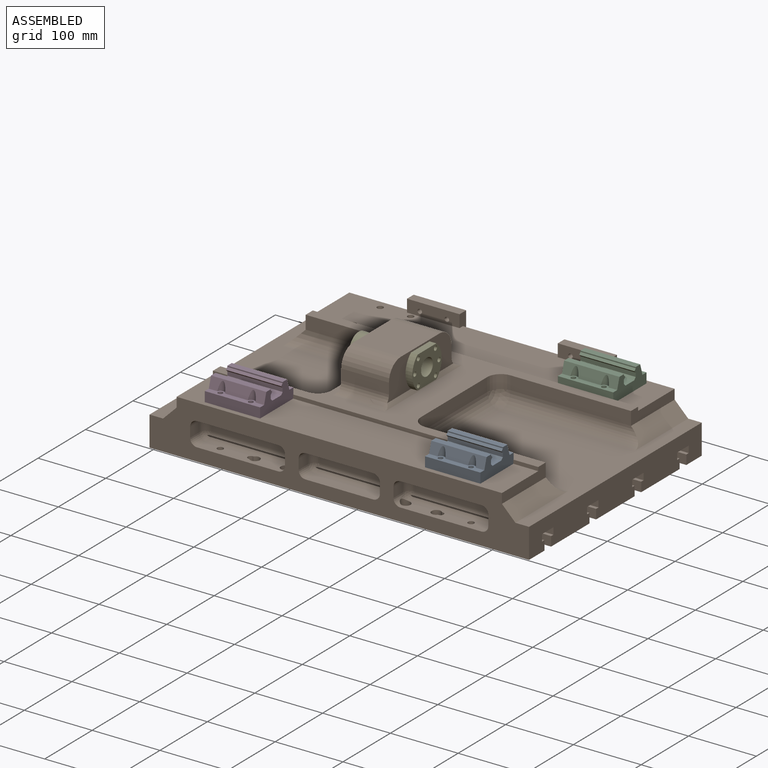
[diagram: assembled view]
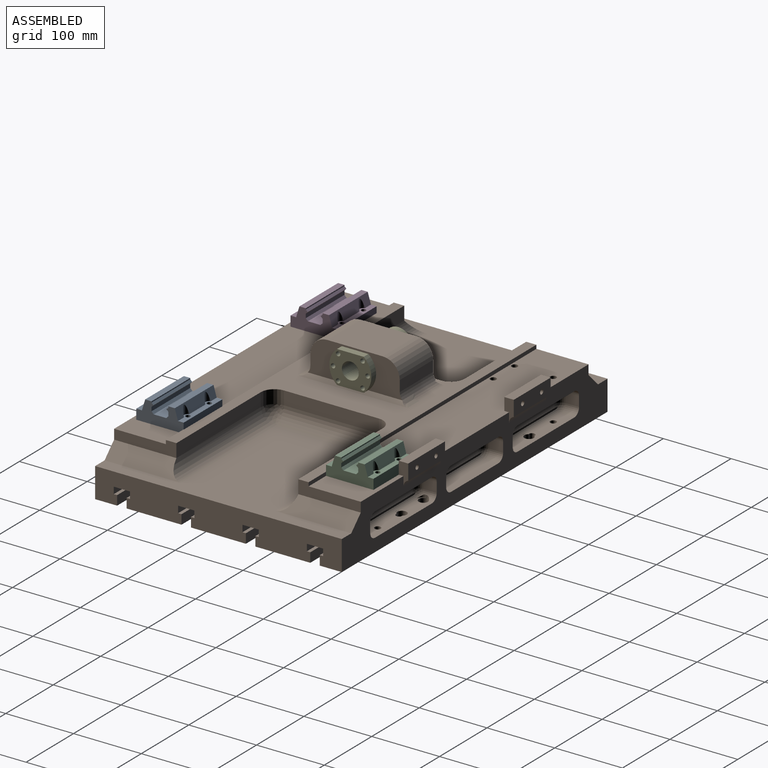
[diagram: assembled view, second angle]
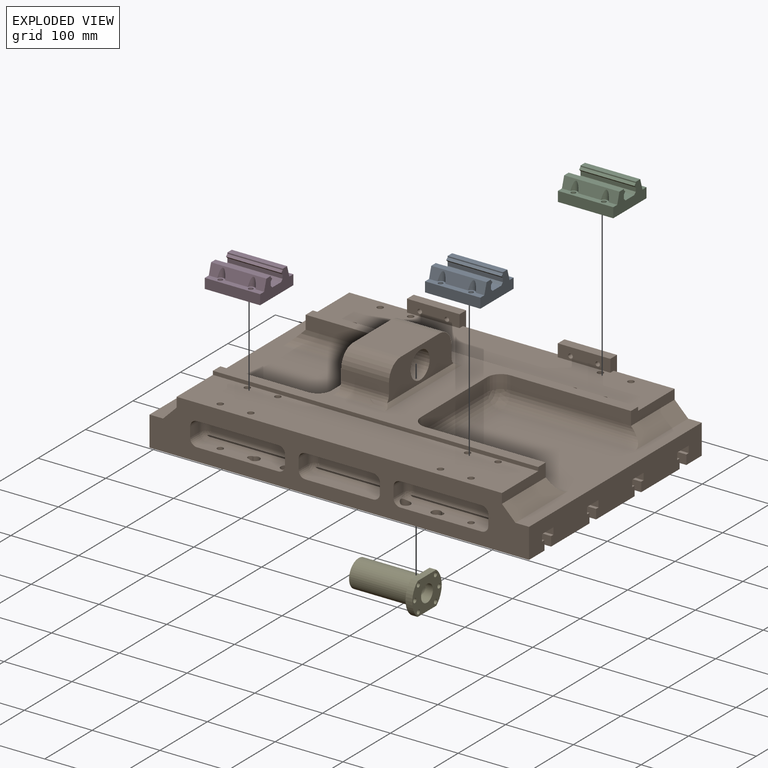
[diagram: exploded view]
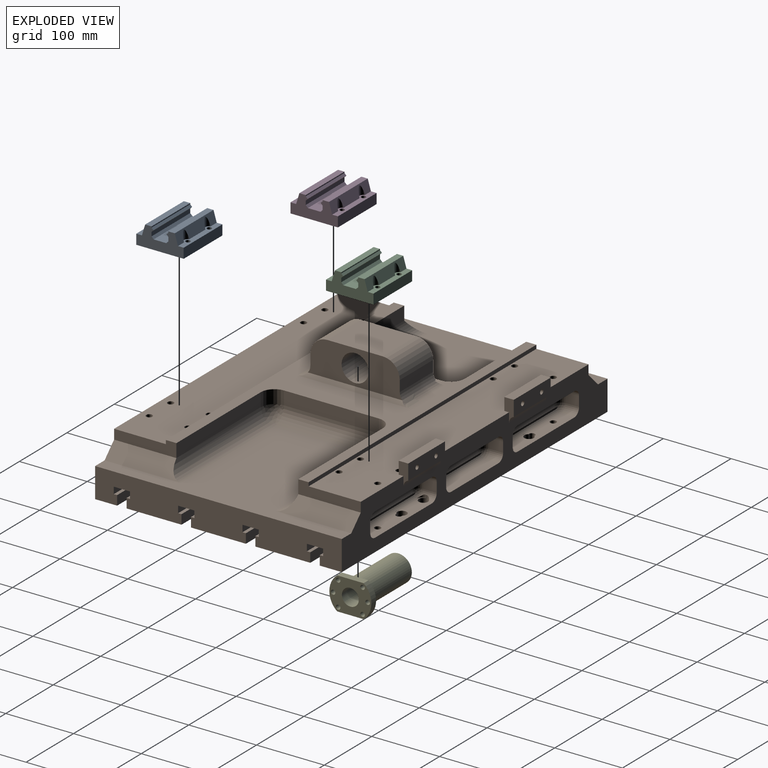
[diagram: exploded view, second angle]
ASSEMBLY  parts=5 mates=4
PART A: 30 faces, bbox 70x81.6x30.5 mm
  f0: cylinder r=3.46mm len=14.75mm, axis (0,0,-1), area 320.5mm2, adj f18,f29
  f1: cylinder r=3.46mm len=14.75mm, axis (0,0,-1), area 320.5mm2, adj f18,f29
  f2: cylinder r=3.46mm len=14.75mm, axis (0,0,-1), area 320.5mm2, adj f17,f29
  f3: cylinder r=3.46mm len=14.75mm, axis (0,0,-1), area 320.5mm2, adj f17,f29
  f4: plane 81.6x2.94mm, normal (-0.7,0,-0.72), area 334.9mm2, adj f10,f19,f20,f27
  f5: plane 81.6x2.94mm, normal (0.7,0,-0.72), area 334.9mm2, adj f6,f19,f20,f25
  f6: plane 81.6x2.94mm, normal (0.7,0,0.72), area 334.9mm2, adj f5,f19,f20,f26
  f7: plane 81.6x3.21mm, normal (0.71,0,-0.71), area 370.9mm2, adj f8,f19,f20,f26
  f8: plane 81.6x18.57mm, normal (0,0,-1), area 1515.4mm2, adj f7,f9,f19,f20
  f9: plane 81.6x3.21mm, normal (-0.71,0,-0.71), area 370.9mm2, adj f8,f19,f20,f28
  f10: plane 81.6x2.94mm, normal (-0.7,0,0.72), area 334.9mm2, adj f4,f19,f20,f28
  f11: cylinder r=6mm len=13.68mm, axis (0,0,-1), area 132.9mm2, adj f17,f22
  f12: cylinder r=6mm len=13.68mm, axis (0,0,-1), area 132.9mm2, adj f18,f21
  f13: cylinder r=6mm len=13.68mm, axis (0,0,-1), area 132.9mm2, adj f18,f21
  f14: cylinder r=6mm len=13.68mm, axis (0,0,-1), area 132.9mm2, adj f17,f22
  f15: plane 81.6x14.75mm, normal (1,0,0), area 1203.6mm2, adj f17,f19,f20,f29
  f16: plane 81.6x14.75mm, normal (-1,0,0), area 1203.6mm2, adj f18,f19,f20,f29
  f17: plane 81.6x12.5mm, normal (0,0,-1), area 678.5mm2, adj f2,f3,f11,f14,f15,f19,f20,f22
  f18: plane 81.6x12.5mm, normal (0,0,-1), area 678.5mm2, adj f0,f1,f12,f13,f16,f19,f20,f21
  f19: plane 70x30.5mm, normal (0,1,0), area 1410.7mm2, adj f4,f5,f6,f7,f8,f9,f10,f15
  f20: plane 70x30.5mm, normal (0,-1,0), area 1410.7mm2, adj f4,f5,f6,f7,f8,f9,f10,f15
  f21: plane 81.6x15.75mm, normal (-0.96,0,-0.29), area 1104.9mm2, adj f12,f13,f18,f19,f20,f24
  f22: plane 81.6x15.75mm, normal (0.96,0,-0.29), area 1103mm2, adj f11,f14,f17,f19,f20,f23
  f23: plane 81.6x9.38mm, normal (0,0,-1), area 765.3mm2, adj f19,f20,f22,f27
  f24: plane 81.6x9.38mm, normal (0,0,-1), area 765.3mm2, adj f19,f20,f21,f25
  f25: plane 81.6x1.63mm, normal (1,0,0), area 133.2mm2, adj f5,f19,f20,f24
  f26: plane 81.6x5.92mm, normal (1,0,0), area 482.9mm2, adj f6,f7,f19,f20
  f27: plane 81.6x1.63mm, normal (-1,0,0), area 133.2mm2, adj f4,f19,f20,f23
  f28: plane 81.6x5.92mm, normal (-1,0,0), area 482.9mm2, adj f9,f10,f19,f20
  f29: plane 81.6x70mm, normal (0,0,1), area 5561.7mm2, adj f0,f1,f2,f3,f15,f16,f19,f20
PART B: 321 faces, bbox 562.3x373.3x142.3 mm
  f0: plane 32.44x14mm, normal (1,0,0), area 307.6mm2, adj f32,f33,f262,f264,f265,f317
  f1: plane 32.44x14mm, normal (-1,0,0), area 307.6mm2, adj f34,f35,f258,f261,f262,f317
  f2: plane 32.44x14mm, normal (1,0,0), area 307.6mm2, adj f34,f35,f258,f261,f262,f317
  f3: plane 480x5.5mm, normal (0,1,0), area 2640mm2, adj f6,f7,f10,f317
  f4: plane 32.44x14mm, normal (-1,0,0), area 307.6mm2, adj f32,f33,f262,f264,f265,f317
  f5: plane 480x5.5mm, normal (0,-1,0), area 2640mm2, adj f6,f8,f9,f316
  f6: plane 480x210.5mm, normal (0,0,1), area 26075mm2, adj f3,f5,f7,f8,f9,f10,f113,f114
  f7: plane 92x19.9mm, normal (-1,0,0), area 1407.3mm2, adj f3,f6,f114,f262,f309,f317
  f8: plane 92x19.9mm, normal (-1,0,0), area 1410mm2, adj f5,f6,f112,f113,f308,f316
  f9: plane 92x19.9mm, normal (1,0,0), area 1410mm2, adj f5,f6,f112,f209,f311,f316
  f10: plane 92x19.9mm, normal (1,0,0), area 1407.3mm2, adj f3,f6,f211,f262,f310,f317
  f11: cylinder r=4.5mm len=31mm, axis (0,0,1), area 652.4mm2, adj f38,f277,f304
  f12: cylinder r=7mm len=25mm, axis (0,0,-1), area 860.1mm2, adj f38,f57,f304
  f13: cylinder r=4.5mm len=9mm, axis (0,0,1), area 40mm2, adj f36,f274,f302
  f14: cylinder r=7mm len=19.1mm, axis (0,0,-1), area 657.1mm2, adj f69,f82,f303
  f15: cylinder r=4.5mm len=9mm, axis (0,0,1), area 40mm2, adj f39,f281,f298
  f16: cylinder r=7mm len=19.1mm, axis (0,0,-1), area 657.1mm2, adj f71,f82,f299
  f17: cylinder r=4.5mm len=31mm, axis (0,0,1), area 652.4mm2, adj f41,f280,f294
  f18: cylinder r=7mm len=25mm, axis (0,0,-1), area 860.1mm2, adj f41,f57,f294
  f19: cylinder r=4.5mm len=9mm, axis (0,0,1), area 40mm2, adj f129,f273,f289
  f20: cylinder r=7mm len=19.11mm, axis (0,0,-1), area 657.2mm2, adj f111,f123,f125,f206,f290
  f21: cylinder r=4.5mm len=31mm, axis (0,0,1), area 652.4mm2, adj f185,f270,f288
  f22: cylinder r=7mm len=25mm, axis (0,0,-1), area 860.1mm2, adj f104,f185,f288
  f23: cylinder r=4.5mm len=31mm, axis (0,0,1), area 652.4mm2, adj f187,f272,f286
  f24: cylinder r=7mm len=25mm, axis (0,0,-1), area 860.1mm2, adj f104,f187,f286
  f25: cylinder r=4.5mm len=9mm, axis (0,0,1), area 40mm2, adj f133,f271,f284
  f26: cylinder r=7mm len=19.11mm, axis (0,0,-1), area 657.2mm2, adj f111,f124,f137,f203,f285
  f27: cylinder r=4.5mm len=31mm, axis (0,0,1), area 876.5mm2, adj f40,f279
  f28: cylinder r=4.5mm len=9mm, axis (0,0,1), area 53.7mm2, adj f39,f278
  f29: cylinder r=4.5mm len=31mm, axis (0,0,1), area 876.5mm2, adj f37,f276
  f30: cylinder r=4.5mm len=9mm, axis (0,0,1), area 53.7mm2, adj f36,f275
  f31: cylinder r=3.32mm len=14mm, axis (0,-1,0), area 292.4mm2, adj f32,f265
  f32: plane 77.5x18.5mm, normal (0,-1,0), area 1364.3mm2, adj f0,f4,f31,f263,f264,f317
  f33: cylinder r=10mm len=77.5mm, axis (1,0,0), area 981.2mm2, adj f0,f4,f262,f265
  f34: plane 77.5x18.5mm, normal (0,-1,0), area 1364.3mm2, adj f1,f2,f259,f260,f261,f317
  f35: cylinder r=10mm len=77.5mm, axis (1,0,0), area 981.2mm2, adj f1,f2,f258,f262
  f36: plane 128.25x22.5mm, normal (0,0,-1), area 2278.7mm2, adj f13,f30,f42,f43,f44,f45,f46,f256
  f37: plane 14x14mm, normal (0,0,-1), area 90.3mm2, adj f29,f47
  f38: plane 14x12.43mm, normal (0,0,-1), area 68.7mm2, adj f11,f12,f304
  f39: plane 128.25x22.5mm, normal (0,0,-1), area 2278.7mm2, adj f15,f28,f48,f49,f50,f51,f253,f254
  f40: plane 14x14mm, normal (0,0,-1), area 90.3mm2, adj f27,f52
  f41: plane 14x12.43mm, normal (0,0,-1), area 68.7mm2, adj f17,f18,f294
  f42: cylinder r=10mm len=120mm, axis (1,0,0), area 1862.6mm2, adj f36,f44,f45,f46,f53,f54,f55,f256
  f43: cylinder r=10mm len=20mm, axis (0,-1,0), area 314.2mm2, adj f36,f53,f56,f262
  f44: cylinder r=7mm len=14mm, axis (0,0,1), area 50.7mm2, adj f36,f42,f55,f256,f257
  f45: cylinder r=5.5mm len=2.39mm, axis (0,0,-1), area 0.1mm2, adj f36,f42,f46
  f46: cylinder r=7mm len=9.25mm, axis (0,0,1), area 2mm2, adj f36,f42,f45
  f47: cylinder r=7mm len=25mm, axis (0,0,-1), area 1099.6mm2, adj f37,f57
  f48: cylinder r=5.5mm len=2.39mm, axis (0,0,-1), area 0.1mm2, adj f39,f49,f254
  f49: cylinder r=7mm len=14mm, axis (0,0,1), area 50.8mm2, adj f39,f48,f50,f252,f254
  f50: cylinder r=10mm len=20mm, axis (0,-1,0), area 221.2mm2, adj f39,f49,f58,f252,f262
  f51: cylinder r=7mm len=9.25mm, axis (0,0,1), area 1.9mm2, adj f39,f254,f255
  f52: cylinder r=7mm len=25mm, axis (0,0,-1), area 1099.6mm2, adj f40,f57
  f53: sphere r=10mm, area 157.1mm2, adj f42,f43,f59
  f54: plane 120x15mm, normal (0,1,0), area 1800mm2, adj f42,f59,f60,f61
  f55: sphere r=10mm, area 145.8mm2, adj f42,f44,f61,f257
  f56: plane 20x15mm, normal (1,0,0), area 300mm2, adj f43,f59,f62,f262
  f57: plane 560x81mm, normal (0,0,-1), area 44557.7mm2, adj f12,f18,f47,f52,f63,f251,f294,f295
  f58: plane 20x15mm, normal (1,0,0), area 300mm2, adj f50,f64,f250,f262
  f59: cylinder r=10mm len=15mm, axis (0,0,-1), area 235.6mm2, adj f53,f54,f56,f65
  f60: cylinder r=10mm len=120mm, axis (-1,0,0), area 642.2mm2, adj f54,f65,f66,f67
  f61: cylinder r=10mm len=15mm, axis (0,0,1), area 235.6mm2, adj f54,f55,f66,f68
  f62: cylinder r=10mm len=20mm, axis (0,-1,0), area 314.2mm2, adj f56,f65,f69,f262
  f63: plane 560x14mm, normal (0,1,0), area 7840mm2, adj f57,f249,f306,f307
  f64: cylinder r=10mm len=20mm, axis (0,-1,0), area 201.9mm2, adj f58,f70,f71,f72,f248,f262
  f65: sphere r=10mm, area 153.1mm2, adj f59,f60,f62,f67,f73,f247
  f66: sphere r=10mm, area 139.5mm2, adj f60,f61,f67,f73,f74,f75,f247
  f67: plane 560.49x24.49mm, normal (0,0,-1), area 13046.6mm2, adj f60,f65,f66,f73,f76,f77,f78,f84
  f68: plane 20x15mm, normal (-1,0,0), area 300mm2, adj f61,f75,f257,f262
  f69: plane 128.25x22.5mm, normal (0,0,1), area 2136.2mm2, adj f14,f62,f74,f75,f79,f243,f244,f245
  f70: cylinder r=7mm len=10.89mm, axis (0,0,1), area 30.7mm2, adj f64,f71,f72,f241,f242,f248
  f71: plane 128.25x22.5mm, normal (0,0,1), area 2136.2mm2, adj f16,f64,f70,f72,f80,f81,f240,f241
  f72: cylinder r=7mm len=23.45mm, axis (0,0,-1), area 868.7mm2, adj f64,f70,f71,f82
  f73: plane 561.01x11.01mm, normal (0,-1,0), area 5059mm2, adj f65,f66,f67,f76,f83,f84,f237,f239
  f74: cylinder r=7mm len=10.89mm, axis (0,0,1), area 30.7mm2, adj f66,f69,f75,f243,f244,f247
  f75: cylinder r=10mm len=20mm, axis (0,-1,0), area 201.8mm2, adj f66,f68,f69,f74,f243,f262
  f76: sphere r=10mm, area 152.1mm2, adj f67,f73,f83,f85,f86,f246
  f77: cylinder r=10mm len=120mm, axis (1,0,0), area 642.2mm2, adj f67,f237,f238,f248
  f78: plane 560x10mm, normal (0,1,0), area 5600mm2, adj f67,f249,f306,f307
  f79: cylinder r=7mm len=9.25mm, axis (0,0,1), area 1.9mm2, adj f69,f245,f247
  f80: cylinder r=7mm len=9.25mm, axis (0,0,1), area 2mm2, adj f71,f240,f241
  f81: cylinder r=10mm len=20mm, axis (0,-1,0), area 314.2mm2, adj f71,f87,f237,f262
  f82: plane 560x32.5mm, normal (0,0,-1), area 17397.7mm2, adj f14,f16,f72,f236,f243,f262,f296,f299
  f83: cylinder r=10mm len=100mm, axis (-1,0,0), area 848.1mm2, adj f73,f76,f84,f88
  f84: sphere r=10mm, area 148.8mm2, adj f67,f73,f83,f231,f233,f246
  f85: cylinder r=10mm len=15mm, axis (0,0,-1), area 235.6mm2, adj f76,f89,f90,f235
  f86: cylinder r=10mm len=20mm, axis (0,-1,0), area 314.2mm2, adj f76,f88,f90,f262
  f87: plane 20x15mm, normal (-1,0,0), area 300mm2, adj f81,f234,f253,f262
  f88: plane 100x20mm, normal (0,0,1), area 2000mm2, adj f83,f86,f233,f262
  f89: sphere r=10mm, area 166.6mm2, adj f85,f91,f92
  f90: plane 20x15mm, normal (1,0,0), area 300mm2, adj f85,f86,f91,f262
  f91: cylinder r=10mm len=20mm, axis (0,-1,0), area 314.2mm2, adj f89,f90,f232,f262
  f92: cylinder r=10mm len=100mm, axis (1,0,0), area 1570.8mm2, adj f89,f93,f232,f235
  f93: sphere r=10mm, area 166.6mm2, adj f92,f95,f231
  f94: plane 20x15mm, normal (-1,0,0), area 300mm2, adj f95,f231,f233,f262
  f95: cylinder r=10mm len=20mm, axis (0,-1,0), area 314.2mm2, adj f93,f94,f232,f262
  f96: plane 560x14mm, normal (0,1,0), area 7840mm2, adj f97,f118,f306,f307
  f97: plane 560x81mm, normal (0,0,-1), area 45360mm2, adj f96,f98,f306,f307
  f98: plane 560x14mm, normal (0,-1,0), area 7840mm2, adj f97,f99,f306,f307
  f99: plane 560x5mm, normal (0,0,1), area 2800mm2, adj f98,f230,f306,f307
  f100: plane 560x24mm, normal (0,0,-1), area 13440mm2, adj f101,f230,f306,f307
  f101: plane 560x10mm, normal (0,1,0), area 5600mm2, adj f100,f102,f306,f307
  f102: plane 560x5mm, normal (0,0,1), area 2800mm2, adj f101,f103,f306,f307
  f103: plane 560x14mm, normal (0,1,0), area 7840mm2, adj f102,f104,f306,f307
  f104: plane 560x81mm, normal (0,0,-1), area 44557.7mm2, adj f22,f24,f103,f105,f223,f224,f286,f287
  f105: plane 560x14mm, normal (0,-1,0), area 7840mm2, adj f104,f106,f306,f307
  f106: plane 560x5mm, normal (0,0,1), area 2800mm2, adj f105,f229,f306,f307
  f107: plane 561.04x25.04mm, normal (0,0,-1), area 13046.6mm2, adj f108,f119,f120,f121,f155,f165,f219,f220
  f108: plane 561.01x11.01mm, normal (0,1,0), area 5058.9mm2, adj f107,f109,f119,f120,f121,f122,f123,f124
  f109: plane 560x5mm, normal (0,0,1), area 2800mm2, adj f108,f110,f306,f307
  f110: plane 560x14mm, normal (0,1,0), area 7840mm2, adj f109,f111,f306,f307
  f111: plane 560x32.5mm, normal (0,0,-1), area 17397.7mm2, adj f20,f26,f110,f112,f217,f218,f282,f285
  f112: plane 560x78.5mm, normal (0,-1,0), area 27865.5mm2, adj f8,f9,f111,f125,f126,f127,f128,f129
  f113: plane 130x19.9mm, normal (0,1,0), area 2587mm2, adj f6,f8,f151,f228
  f114: plane 130x19.9mm, normal (0,-1,0), area 2587mm2, adj f6,f7,f210,f226
  f115: plane 560x5mm, normal (0,0,1), area 2800mm2, adj f225,f251,f306,f307
  f116: plane 560x24mm, normal (0,0,-1), area 13440mm2, adj f117,f225,f306,f307
  f117: plane 560x10mm, normal (0,1,0), area 5600mm2, adj f116,f118,f306,f307
  f118: plane 560x5mm, normal (0,0,1), area 2800mm2, adj f96,f117,f306,f307
  f119: sphere r=10mm, area 153mm2, adj f107,f108,f122,f142,f196,f222
  f120: sphere r=10mm, area 151mm2, adj f107,f108,f124,f138,f154,f218,f221
  f121: sphere r=10mm, area 153mm2, adj f107,f108,f123,f126,f157,f220
  f122: cylinder r=10mm len=100mm, axis (1,0,0), area 848.1mm2, adj f108,f119,f141,f155
  f123: cylinder r=10mm len=120mm, axis (1,0,0), area 1013.5mm2, adj f20,f108,f121,f125,f205,f206,f217,f219
  f124: cylinder r=10mm len=120mm, axis (1,0,0), area 1013.5mm2, adj f26,f108,f120,f137,f165,f203,f204,f218
  f125: plane 128.25x20.5mm, normal (0,0,1), area 2101.5mm2, adj f20,f112,f123,f126,f132,f156,f205,f206
  f126: cylinder r=10mm len=20mm, axis (0,1,0), area 314.2mm2, adj f112,f121,f125,f127
  f127: plane 20x15mm, normal (-1,0,0), area 300mm2, adj f112,f126,f128,f157
  f128: cylinder r=10mm len=20mm, axis (0,1,0), area 314.2mm2, adj f112,f127,f129,f158
  f129: plane 128.25x20.5mm, normal (0,0,-1), area 2255.3mm2, adj f19,f112,f128,f130,f159,f200,f201,f202
  f130: cylinder r=10mm len=20mm, axis (0,1,0), area 207.9mm2, adj f112,f129,f131,f199,f201
  f131: plane 20x15mm, normal (1,0,0), area 300mm2, adj f112,f130,f132,f198
  f132: cylinder r=10mm len=20mm, axis (0,1,0), area 204.8mm2, adj f112,f125,f131,f156,f217,f219
  f133: plane 128.25x20.5mm, normal (0,0,-1), area 2255.3mm2, adj f25,f112,f134,f140,f160,f161,f162,f197
  f134: cylinder r=10mm len=20mm, axis (0,1,0), area 314.2mm2, adj f112,f133,f135,f163
  f135: plane 20x15mm, normal (1,0,0), area 300mm2, adj f112,f134,f136,f164
  f136: cylinder r=10mm len=20mm, axis (0,1,0), area 314.2mm2, adj f112,f135,f137,f165
  f137: plane 128.25x20.5mm, normal (0,0,1), area 2101.5mm2, adj f26,f112,f124,f136,f138,f166,f203,f204
  f138: cylinder r=10mm len=20mm, axis (0,1,0), area 204.7mm2, adj f112,f120,f137,f139,f166,f218
  f139: plane 20x15mm, normal (-1,0,0), area 300mm2, adj f112,f138,f140,f154
  f140: cylinder r=10mm len=20mm, axis (0,1,0), area 208.3mm2, adj f112,f133,f139,f190,f197
  f141: plane 100x20mm, normal (0,0,1), area 2000mm2, adj f112,f122,f142,f148
  f142: cylinder r=10mm len=20mm, axis (0,1,0), area 314.2mm2, adj f112,f119,f141,f143
  f143: plane 20x15mm, normal (-1,0,0), area 300mm2, adj f112,f142,f144,f196
  f144: cylinder r=10mm len=20mm, axis (0,1,0), area 314.2mm2, adj f112,f143,f145,f182
  f145: plane 100x20mm, normal (0,0,-1), area 2000mm2, adj f112,f144,f146,f195
  f146: cylinder r=10mm len=20mm, axis (0,1,0), area 314.2mm2, adj f112,f145,f147,f167
  f147: plane 20x15mm, normal (1,0,0), area 300mm2, adj f112,f146,f148,f194
  f148: cylinder r=10mm len=20mm, axis (0,1,0), area 314.2mm2, adj f112,f141,f147,f155
  f149: plane 140x19.9mm, normal (1,0,0), area 2786mm2, adj f6,f152,f193,f212
  f150: plane 140x19.9mm, normal (-1,0,0), area 2786mm2, adj f6,f151,f192,f210
  f151: cylinder r=20mm len=20mm, axis (0,0,-1), area 625.2mm2, adj f6,f113,f150,f168
  f152: cylinder r=20mm len=20mm, axis (0,0,-1), area 625.2mm2, adj f6,f149,f178,f209
  f153: cylinder r=15.1mm len=73.1mm, axis (1,0,0), area 1385.7mm2, adj f6,f169,f208,f312,f315,f318,f319
  f154: cylinder r=10mm len=15mm, axis (0,0,1), area 235.6mm2, adj f120,f139,f190,f191
  f155: sphere r=10mm, area 153.1mm2, adj f107,f108,f122,f148,f194,f222
  f156: cylinder r=7mm len=8.25mm, axis (0,0,1), area 24.9mm2, adj f125,f132,f217
  f157: cylinder r=10mm len=15mm, axis (0,0,1), area 235.6mm2, adj f121,f127,f158,f170
  f158: sphere r=10mm, area 157.1mm2, adj f128,f157,f202
  f159: cylinder r=5.5mm len=4.58mm, axis (0,0,-1), area 0mm2, adj f129,f202
  f160: cylinder r=10mm len=120mm, axis (-1,0,0), area 1883.6mm2, adj f133,f161,f162,f163,f190,f191
  f161: cylinder r=5.5mm len=4.58mm, axis (0,0,-1), area 0mm2, adj f133,f160
  f162: cylinder r=5.5mm len=4.59mm, axis (0,0,-1), area 0.1mm2, adj f133,f160,f171,f190,f197
  f163: sphere r=10mm, area 157.1mm2, adj f134,f160,f164
  f164: cylinder r=10mm len=15mm, axis (0,0,-1), area 235.6mm2, adj f135,f163,f165,f191
  f165: sphere r=10mm, area 153.1mm2, adj f107,f108,f124,f136,f164,f221
  f166: cylinder r=7mm len=8.25mm, axis (0,0,1), area 24.9mm2, adj f137,f138,f218
  f167: sphere r=10mm, area 157.1mm2, adj f146,f194,f195
  f168: sphere r=20mm, area 628.3mm2, adj f151,f192,f228
  f169: plane 70.5x16mm, normal (0,1,0), area 1128mm2, adj f153,f172,f315,f319
  f170: plane 120x15mm, normal (0,-1,0), area 1800mm2, adj f157,f198,f202,f220
  f171: cylinder r=10mm len=0.21mm, axis (0,1,0), area 0mm2, adj f162,f190,f197
  f172: cylinder r=24.9mm len=70.5mm, axis (1,0,0), area 2757.5mm2, adj f169,f189,f315,f319
  f173: cylinder r=24.9mm len=70.5mm, axis (1,0,0), area 2757.5mm2, adj f174,f189,f315,f319
  f174: plane 70.5x16mm, normal (0,-1,0), area 1128mm2, adj f173,f207,f315,f319
  f175: cylinder r=20mm len=198mm, axis (-1,0,0), area 5992mm2, adj f177,f188,f211,f310
  f176: cylinder r=20mm len=198mm, axis (-1,0,0), area 5992mm2, adj f178,f188,f209,f311
  f177: sphere r=20mm, area 628.3mm2, adj f175,f193,f212
  f178: sphere r=20mm, area 628.3mm2, adj f152,f176,f193
  f179: sphere r=10mm, area 157.1mm2, adj f234,f253,f254
  f180: sphere r=20mm, area 628.3mm2, adj f192,f210,f226
  f181: cylinder r=10mm len=0.21mm, axis (0,1,0), area 0mm2, adj f199,f200,f201
  f182: sphere r=10mm, area 166.6mm2, adj f144,f195,f196
  f183: plane 100x15mm, normal (0,-1,0), area 1500mm2, adj f194,f195,f196,f222
  f184: plane 14x14mm, normal (0,0,-1), area 90.3mm2, adj f216,f223
  f185: plane 14x12.43mm, normal (0,0,-1), area 68.7mm2, adj f21,f22,f288
  f186: plane 14x14mm, normal (0,0,-1), area 90.3mm2, adj f214,f224
  f187: plane 14x12.43mm, normal (0,0,-1), area 68.7mm2, adj f23,f24,f286
  f188: plane 364x218mm, normal (0,0,1), area 35000mm2, adj f112,f175,f176,f193,f262,f306,f310,f311
  f189: plane 82x70.5mm, normal (0,0,1), area 5781mm2, adj f172,f173,f315,f319
  f190: sphere r=10mm, area 156.9mm2, adj f140,f154,f160,f162,f171
  f191: plane 120x15mm, normal (0,-1,0), area 1800mm2, adj f154,f160,f164,f221
  f192: cylinder r=20mm len=140mm, axis (0,1,0), area 4398.2mm2, adj f150,f168,f180,f227
  f193: cylinder r=20mm len=140mm, axis (0,-1,0), area 4398.2mm2, adj f149,f177,f178,f188
  f194: cylinder r=10mm len=15mm, axis (0,0,-1), area 235.6mm2, adj f147,f155,f167,f183
  f195: cylinder r=10mm len=100mm, axis (-1,0,0), area 1570.8mm2, adj f145,f167,f182,f183
  f196: cylinder r=10mm len=15mm, axis (0,0,1), area 235.6mm2, adj f119,f143,f182,f183
  f197: cylinder r=7mm len=14mm, axis (0,0,1), area 48.5mm2, adj f133,f140,f162,f171
  f198: cylinder r=10mm len=15mm, axis (0,0,-1), area 235.6mm2, adj f131,f170,f199,f219
  f199: sphere r=10mm, area 156.9mm2, adj f130,f181,f198,f200,f202
  f200: cylinder r=5.5mm len=4.59mm, axis (0,0,-1), area 0.1mm2, adj f129,f181,f199,f201,f202
  f201: cylinder r=7mm len=14mm, axis (0,0,1), area 48.6mm2, adj f129,f130,f181,f200
  f202: cylinder r=10mm len=120mm, axis (-1,0,0), area 1883.6mm2, adj f129,f158,f159,f170,f199,f200
  f203: cylinder r=5.5mm len=3.47mm, axis (0,0,-1), area 0mm2, adj f26,f124,f137
  f204: cylinder r=5.5mm len=3.47mm, axis (0,0,-1), area 0mm2, adj f124,f137,f218
  f205: cylinder r=5.5mm len=3.47mm, axis (0,0,-1), area 0mm2, adj f123,f125,f217
  f206: cylinder r=5.5mm len=3.47mm, axis (0,0,-1), area 0mm2, adj f20,f123,f125
  f207: cylinder r=15.1mm len=73.1mm, axis (1,0,0), area 1385.7mm2, adj f6,f174,f208,f313,f315,f318,f319
  f208: plane 164.28x7.38mm, normal (-0.71,0,0.71), area 1054.9mm2, adj f6,f153,f207,f318
  f209: plane 178x19.9mm, normal (0,1,0), area 3542.2mm2, adj f6,f9,f152,f176
  f210: cylinder r=20mm len=20mm, axis (0,0,1), area 625.2mm2, adj f6,f114,f150,f180
  f211: plane 178x19.9mm, normal (0,-1,0), area 3542.2mm2, adj f6,f10,f175,f212
  f212: cylinder r=20mm len=20mm, axis (0,0,1), area 625.2mm2, adj f6,f149,f177,f211
  f213: cylinder r=4.5mm len=9mm, axis (0,0,1), area 53.7mm2, adj f129,f269
  f214: cylinder r=4.5mm len=31mm, axis (0,0,1), area 876.5mm2, adj f186,f268
  f215: cylinder r=4.5mm len=9mm, axis (0,0,1), area 53.7mm2, adj f133,f267
  f216: cylinder r=4.5mm len=31mm, axis (0,0,1), area 876.5mm2, adj f184,f266
  f217: cylinder r=7mm len=23.45mm, axis (0,0,-1), area 865.5mm2, adj f111,f123,f125,f132,f156,f205,f219
  f218: cylinder r=7mm len=23.45mm, axis (0,0,-1), area 865.5mm2, adj f111,f120,f124,f137,f138,f166,f204
  f219: sphere r=10mm, area 138.9mm2, adj f107,f108,f123,f132,f198,f217,f220
  f220: cylinder r=10mm len=120mm, axis (1,0,0), area 642.2mm2, adj f107,f121,f170,f219
  f221: cylinder r=10mm len=120mm, axis (1,0,0), area 642.2mm2, adj f107,f120,f165,f191
  f222: cylinder r=10mm len=100mm, axis (1,0,0), area 535.2mm2, adj f107,f119,f155,f183
  f223: cylinder r=7mm len=25mm, axis (0,0,-1), area 1099.6mm2, adj f104,f184
  f224: cylinder r=7mm len=25mm, axis (0,0,-1), area 1099.6mm2, adj f104,f186
  f225: plane 560x10mm, normal (0,-1,0), area 5600mm2, adj f115,f116,f306,f307
  f226: cylinder r=20mm len=150mm, axis (-1,0,0), area 4484.1mm2, adj f114,f180,f227,f309
  f227: plane 364x170mm, normal (0,0,1), area 28280mm2, adj f112,f192,f226,f228,f262,f307,f308,f309
  f228: cylinder r=20mm len=150mm, axis (-1,0,0), area 4484.1mm2, adj f113,f168,f227,f308
  f229: plane 560x10mm, normal (0,-1,0), area 5600mm2, adj f106,f107,f306,f307
  f230: plane 560x10mm, normal (0,-1,0), area 5600mm2, adj f99,f100,f306,f307
  f231: cylinder r=10mm len=15mm, axis (0,0,1), area 235.6mm2, adj f84,f93,f94,f235
  f232: plane 100x20mm, normal (0,0,-1), area 2000mm2, adj f91,f92,f95,f262
  f233: cylinder r=10mm len=20mm, axis (0,-1,0), area 314.2mm2, adj f84,f88,f94,f262
  f234: cylinder r=10mm len=15mm, axis (0,0,-1), area 235.6mm2, adj f87,f179,f237,f238
  f235: plane 100x15mm, normal (0,1,0), area 1500mm2, adj f85,f92,f231,f246
  f236: plane 560x14mm, normal (0,-1,0), area 7840mm2, adj f82,f239,f306,f307
  f237: sphere r=10mm, area 153.1mm2, adj f67,f73,f77,f81,f234,f241
  f238: plane 120x15mm, normal (0,1,0), area 1800mm2, adj f77,f234,f250,f254
  f239: plane 560x5mm, normal (0,0,1), area 2800mm2, adj f73,f236,f306,f307
  f240: cylinder r=5.5mm len=2.39mm, axis (0,0,-1), area 0.1mm2, adj f71,f80,f241
  f241: cylinder r=10mm len=120mm, axis (1,0,0), area 995.3mm2, adj f70,f71,f73,f80,f237,f240,f242,f248
  f242: cylinder r=5.5mm len=2.39mm, axis (0,0,-1), area 0.1mm2, adj f70,f71,f241
  f243: cylinder r=7mm len=23.45mm, axis (0,0,-1), area 868.3mm2, adj f69,f74,f75,f82
  f244: cylinder r=5.5mm len=2.39mm, axis (0,0,-1), area 0.1mm2, adj f69,f74,f247
  f245: cylinder r=5.5mm len=2.39mm, axis (0,0,-1), area 0.1mm2, adj f69,f79,f247
  f246: cylinder r=10mm len=100mm, axis (-1,0,0), area 535.2mm2, adj f67,f76,f84,f235
  f247: cylinder r=10mm len=120mm, axis (-1,0,0), area 995.3mm2, adj f65,f66,f69,f73,f74,f79,f244,f245
  f248: sphere r=10mm, area 140.7mm2, adj f64,f67,f70,f73,f77,f241,f250
  f249: plane 560x5mm, normal (0,0,1), area 2800mm2, adj f63,f78,f306,f307
  f250: cylinder r=10mm len=15mm, axis (0,0,1), area 235.6mm2, adj f58,f238,f248,f252
  f251: plane 560x14mm, normal (0,-1,0), area 7840mm2, adj f57,f115,f306,f307
  f252: sphere r=10mm, area 145.8mm2, adj f49,f50,f250,f254
  f253: cylinder r=10mm len=20mm, axis (0,-1,0), area 314.2mm2, adj f39,f87,f179,f262
  f254: cylinder r=10mm len=120mm, axis (-1,0,0), area 1862.6mm2, adj f39,f48,f49,f51,f179,f238,f252,f255
  f255: cylinder r=5.5mm len=2.39mm, axis (0,0,1), area 0.1mm2, adj f39,f51,f254
  f256: cylinder r=5.5mm len=2.39mm, axis (0,0,-1), area 0.1mm2, adj f36,f42,f44
  f257: cylinder r=10mm len=20mm, axis (0,-1,0), area 221.2mm2, adj f36,f44,f55,f68,f262
  f258: plane 77.5x22.9mm, normal (0,1,0), area 1705.3mm2, adj f1,f2,f35,f259,f260,f261
  f259: cylinder r=3.32mm len=14mm, axis (0,-1,0), area 292.4mm2, adj f34,f258
  f260: cylinder r=3.32mm len=14mm, axis (0,-1,0), area 292.4mm2, adj f34,f258
  f261: plane 77.5x14mm, normal (0,0,1), area 1085mm2, adj f1,f2,f34,f258
  f262: plane 560x78.5mm, normal (0,1,0), area 25704.9mm2, adj f0,f1,f2,f4,f7,f10,f33,f35
  f263: cylinder r=3.32mm len=14mm, axis (0,-1,0), area 292.4mm2, adj f32,f265
  f264: plane 77.5x14mm, normal (0,0,1), area 1085mm2, adj f0,f4,f32,f265
  f265: plane 77.5x22.9mm, normal (0,1,0), area 1705.3mm2, adj f0,f4,f31,f33,f263,f264
  f266: plane 9x9mm, normal (0,0,-1), area 63.6mm2, adj f216
  f267: plane 9x9mm, normal (0,0,-1), area 63.6mm2, adj f215
  f268: plane 9x9mm, normal (0,0,-1), area 63.6mm2, adj f214
  f269: plane 9x9mm, normal (0,0,-1), area 63.6mm2, adj f213
  f270: plane 9x7.63mm, normal (0,0,-1), area 51.3mm2, adj f21,f288
  f271: plane 9x7.63mm, normal (0,0,-1), area 51.3mm2, adj f25,f284
  f272: plane 9x7.63mm, normal (0,0,-1), area 51.3mm2, adj f23,f286
  f273: plane 9x7.63mm, normal (0,0,-1), area 51.3mm2, adj f19,f289
  f274: plane 9x7.63mm, normal (0,0,-1), area 51.3mm2, adj f13,f302
  f275: plane 9x9mm, normal (0,0,-1), area 63.6mm2, adj f30
  f276: plane 9x9mm, normal (0,0,-1), area 63.6mm2, adj f29
  f277: plane 9x7.63mm, normal (0,0,-1), area 51.3mm2, adj f11,f304
  f278: plane 9x9mm, normal (0,0,-1), area 63.6mm2, adj f28
  f279: plane 9x9mm, normal (0,0,-1), area 63.6mm2, adj f27
  f280: plane 9x7.63mm, normal (0,0,-1), area 51.3mm2, adj f17,f294
  f281: plane 9x7.63mm, normal (0,0,-1), area 51.3mm2, adj f15,f298
  f282: cylinder r=4.5mm len=19.1mm, axis (0,0,1), area 540mm2, adj f111,f137
  f283: cylinder r=4.5mm len=24.4mm, axis (0,0,1), area 689.9mm2, adj f133,f316
  f284: cylinder r=4.5mm len=24.4mm, axis (0,0,1), area 676.2mm2, adj f25,f133,f271,f316
  f285: cylinder r=4.5mm len=19.1mm, axis (0,0,1), area 301.7mm2, adj f26,f111,f137
  f286: cylinder r=4.5mm len=78.5mm, axis (0,0,1), area 1683.5mm2, adj f23,f24,f104,f187,f272,f316
  f287: cylinder r=4.5mm len=78.5mm, axis (0,0,1), area 2219.5mm2, adj f104,f316
  f288: cylinder r=4.5mm len=78.5mm, axis (0,0,1), area 1683.5mm2, adj f21,f22,f104,f185,f270,f316
  f289: cylinder r=4.5mm len=24.4mm, axis (0,0,1), area 676.2mm2, adj f19,f129,f273,f316
  f290: cylinder r=4.5mm len=19.1mm, axis (0,0,1), area 301.7mm2, adj f20,f111,f125
  f291: cylinder r=4.5mm len=24.4mm, axis (0,0,1), area 689.9mm2, adj f129,f316
  f292: cylinder r=4.5mm len=19.1mm, axis (0,0,1), area 540mm2, adj f111,f125
  f293: cylinder r=4.5mm len=78.5mm, axis (0,0,1), area 2219.5mm2, adj f104,f316
  f294: cylinder r=4.5mm len=78.5mm, axis (0,0,1), area 1683.5mm2, adj f17,f18,f41,f57,f280,f317
  f295: cylinder r=4.5mm len=78.5mm, axis (0,0,1), area 2219.5mm2, adj f57,f317
  f296: cylinder r=4.5mm len=19.1mm, axis (0,0,1), area 540mm2, adj f71,f82
  f297: cylinder r=4.5mm len=24.4mm, axis (0,0,1), area 689.9mm2, adj f39,f317
  f298: cylinder r=4.5mm len=24.4mm, axis (0,0,1), area 676.2mm2, adj f15,f39,f281,f317
  f299: cylinder r=4.5mm len=19.1mm, axis (0,0,1), area 301.7mm2, adj f16,f71,f82
  f300: cylinder r=4.5mm len=19.1mm, axis (0,0,1), area 540mm2, adj f69,f82
  f301: cylinder r=4.5mm len=24.4mm, axis (0,0,1), area 689.9mm2, adj f36,f317
  f302: cylinder r=4.5mm len=24.4mm, axis (0,0,1), area 676.2mm2, adj f13,f36,f274,f317
  f303: cylinder r=4.5mm len=19.1mm, axis (0,0,1), area 301.7mm2, adj f14,f69,f82
  f304: cylinder r=4.5mm len=78.5mm, axis (0,0,1), area 1683.5mm2, adj f11,f12,f38,f57,f277,f317
  f305: cylinder r=4.5mm len=78.5mm, axis (0,0,1), area 2219.5mm2, adj f57,f317
  f306: plane 364x44.1mm, normal (1,0,0), area 14308.4mm2, adj f57,f63,f67,f73,f78,f82,f96,f97
  f307: plane 364x44.1mm, normal (-1,0,0), area 14308.4mm2, adj f57,f63,f67,f73,f78,f82,f96,f97
  f308: plane 112x20mm, normal (-0.71,0,0.71), area 2723.6mm2, adj f8,f112,f227,f228
  f309: plane 112x20mm, normal (-0.71,0,0.71), area 2723.6mm2, adj f7,f226,f227,f262
  f310: plane 112x20mm, normal (0.71,0,0.71), area 2723.6mm2, adj f10,f175,f188,f262
  f311: plane 112x20mm, normal (0.71,0,0.71), area 2723.6mm2, adj f9,f112,f176,f188
  f312: extruded ~30.1x11.31mm, area 319.7mm2, adj f6,f153,f314
  f313: extruded ~30.1x11.31mm, area 319.7mm2, adj f6,f207,f314
  f314: plane 162x5.1mm, normal (0.71,0,0.71), area 1054.9mm2, adj f6,f312,f313,f315
  f315: plane 139.37x50.9mm, normal (1,0,0), area 5209.7mm2, adj f153,f169,f172,f173,f174,f189,f207,f314
  f316: plane 480x76.5mm, normal (0,0,1), area 36211.1mm2, adj f5,f8,f9,f112,f283,f284,f286,f287
  f317: plane 480x77mm, normal (0,0,1), area 35366.1mm2, adj f0,f1,f2,f3,f4,f7,f10,f32
  f318: plane 139.37x2.5mm, normal (0,0,-1), area 348.4mm2, adj f153,f207,f208,f319
  f319: plane 139.37x50.9mm, normal (-1,0,0), area 5209.7mm2, adj f153,f169,f172,f173,f174,f189,f207,f318
  f320: cylinder r=20mm len=70.5mm, axis (1,0,0), area 8859.3mm2, adj f315,f319
PART C: same geometry as A
PART D: same geometry as A
PART E: 15 faces, bbox 62x101x48 mm
  f0: cylinder r=31mm len=48mm, axis (0,1,0), area 549mm2, adj f1,f2,f5,f6
  f1: plane 62x48mm, normal (0,-1,0), area 1181.7mm2, adj f0,f4,f5,f6,f7,f9,f10,f11
  f2: plane 62x48mm, normal (0,1,0), area 1947.5mm2, adj f0,f3,f4,f5,f6,f9,f10,f11
  f3: cylinder r=12.5mm len=101mm, axis (0,1,0), area 7932.5mm2, adj f2,f8
  f4: cylinder r=31mm len=48mm, axis (0,1,0), area 549mm2, adj f1,f2,f5,f6
  f5: plane 39.24x10mm, normal (0,0,-1), area 392.4mm2, adj f0,f1,f2,f4
  f6: plane 39.24x10mm, normal (0,0,1), area 392.4mm2, adj f0,f1,f2,f4
  f7: cylinder r=20mm len=91mm, axis (0,1,0), area 11435.4mm2, adj f1,f8
  f8: plane 40x40mm, normal (0,-1,0), area 765.8mm2, adj f3,f7
  f9: cylinder r=3.3mm len=10mm, axis (0,1,0), area 207.3mm2, adj f1,f2
  f10: cylinder r=3.3mm len=10mm, axis (0,1,0), area 207.3mm2, adj f1,f2
  f11: cylinder r=3.3mm len=10mm, axis (0,1,0), area 207.3mm2, adj f1,f2
  f12: cylinder r=3.3mm len=10mm, axis (0,1,0), area 207.3mm2, adj f1,f2
  f13: cylinder r=3.3mm len=10mm, axis (0,1,0), area 207.3mm2, adj f1,f2
  f14: cylinder r=3.3mm len=10mm, axis (0,1,0), area 207.3mm2, adj f1,f2
PLACE A rot(axis=(0.71,-0.71,0),180deg) t=(-79.21,-147.22,74.79)mm
PLACE B t=(-52.96,-7.22,-0.61)mm
PLACE C rot(axis=(0.71,-0.71,0),180deg) t=(-79.21,132.78,74.79)mm
PLACE D rot(axis=(0.71,-0.71,0),180deg) t=(-404.21,-147.22,74.79)mm
PLACE E rot(axis=(0.71,0.71,0),180deg) t=(-50.93,-107.22,83.79)mm
MATE fastened A.f2 <-> B.f291  axis (0,0,-1) through (132.04,-175.72,48.79)mm
MATE fastened D.f3 <-> B.f282  axis (0,0,-1) through (-237.96,-175.72,48.79)mm
MATE fastened E.f0 <-> B.f320  axis (-1,0,0) through (-60.93,-7.22,83.79)mm
MATE fastened C.f1 <-> B.f296  axis (0,0,-1) through (132.04,161.28,48.79)mm
